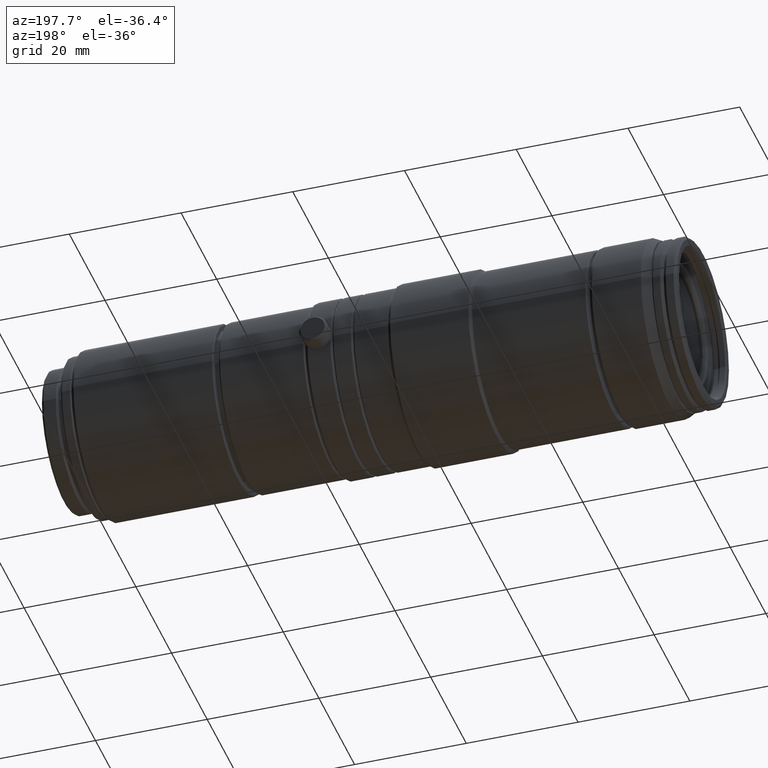
[diagram: clean part render]
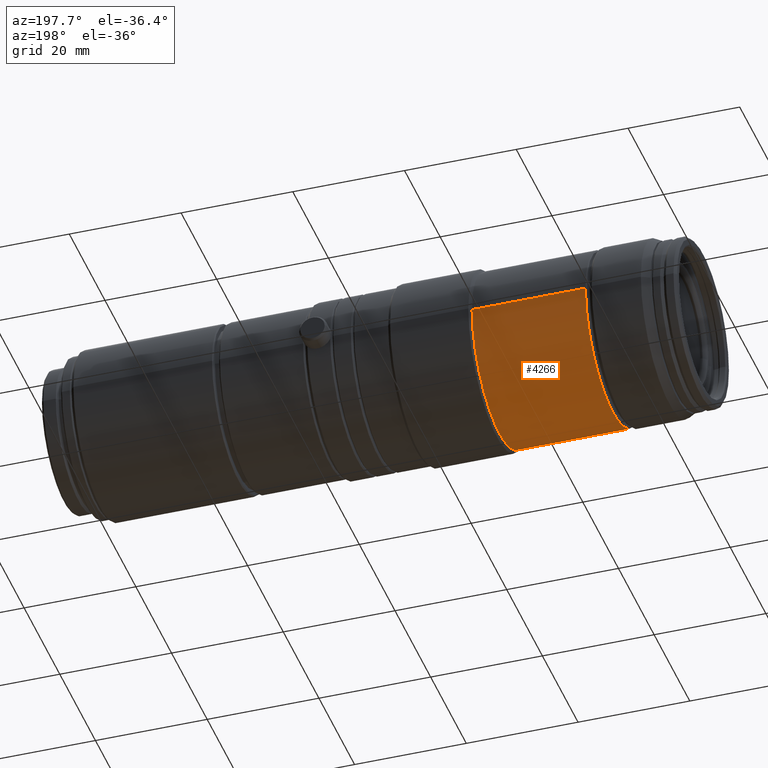
[diagram: same view with one face highlighted and labeled with its STEP entity id]
A machine part, auxiliary view. The second image highlights one B-rep face of the part: STEP entity #4266.
In plain terms, the highlighted cylindrical surface (partial cylindrical patch) has radius 15.4998 mm, axis along (1, -0, -0).
Its self-contained STEP definition (entity closure, byte-faithful):
#293 = DIRECTION ( 'NONE',  ( 1.000000000000000000, -5.556191259460425289E-17, -0.0000000000000000000 ) ) ;
#304 = DIRECTION ( 'NONE',  ( 0.0000000000000000000, 1.000000000000000000, 0.0000000000000000000 ) ) ;
#315 = AXIS2_PLACEMENT_3D ( 'NONE', #4006, #3445, #304 ) ;
#706 = AXIS2_PLACEMENT_3D ( 'NONE', #3741, #293, #3782 ) ;
#733 = DIRECTION ( 'NONE',  ( 1.000000000000000000, -5.556191259460425289E-17, -0.0000000000000000000 ) ) ;
#851 = CARTESIAN_POINT ( 'NONE',  ( -8.612003947942950521E-16, -15.49983351145345978, 1.898182149711835836E-15 ) ) ;
#1407 = VERTEX_POINT ( 'NONE', #3824 ) ;
#1445 = EDGE_CURVE ( 'NONE', #1407, #3763, #1554, .T. ) ;
#1554 = LINE ( 'NONE', #851, #2726 ) ;
#1616 = DIRECTION ( 'NONE',  ( 1.000000000000000000, -5.556191259460425289E-17, -0.0000000000000000000 ) ) ;
#1638 = CYLINDRICAL_SURFACE ( 'NONE', #4247, 15.49983351145345978 ) ;
#1653 = CARTESIAN_POINT ( 'NONE',  ( -91.50000037005251841, -15.49983351145345623, 1.928798319690520411E-15 ) ) ;
#1706 = EDGE_CURVE ( 'NONE', #1407, #2496, #2074, .T. ) ;
#1822 = ORIENTED_EDGE ( 'NONE', *, *, #3076, .T. ) ;
#2049 = DIRECTION ( 'NONE',  ( 5.556191259460425289E-17, 1.000000000000000000, 0.0000000000000000000 ) ) ;
#2074 = CIRCLE ( 'NONE', #315, 15.49983351145345978 ) ;
#2214 = DIRECTION ( 'NONE',  ( 1.000000000000000000, -5.556191259460425289E-17, -0.0000000000000000000 ) ) ;
#2218 = EDGE_LOOP ( 'NONE', ( #3580, #4128, #1822, #2645 ) ) ;
#2277 = VERTEX_POINT ( 'NONE', #3558 ) ;
#2464 = EDGE_CURVE ( 'NONE', #3763, #2277, #3624, .T. ) ;
#2496 = VERTEX_POINT ( 'NONE', #4444 ) ;
#2645 = ORIENTED_EDGE ( 'NONE', *, *, #2464, .F. ) ;
#2726 = VECTOR ( 'NONE', #2214, 1000.000000000000000 ) ;
#3076 = EDGE_CURVE ( 'NONE', #2496, #2277, #3429, .T. ) ;
#3082 = CARTESIAN_POINT ( 'NONE',  ( 0.0000000000000000000, 0.0000000000000000000, 0.0000000000000000000 ) ) ;
#3110 = CARTESIAN_POINT ( 'NONE',  ( 8.612003947942950521E-16, 15.49983351145345978, 0.0000000000000000000 ) ) ;
#3162 = VECTOR ( 'NONE', #733, 1000.000000000000000 ) ;
#3429 = LINE ( 'NONE', #3110, #3162 ) ;
#3445 = DIRECTION ( 'NONE',  ( 1.000000000000000000, -5.556191259460425289E-17, -0.0000000000000000000 ) ) ;
#3558 = CARTESIAN_POINT ( 'NONE',  ( -91.50000037005251841, 15.49983351145346688, 0.0000000000000000000 ) ) ;
#3580 = ORIENTED_EDGE ( 'NONE', *, *, #1445, .F. ) ;
#3624 = CIRCLE ( 'NONE', #706, 15.49983351145346155 ) ;
#3741 = CARTESIAN_POINT ( 'NONE',  ( -91.50000037005251841, 5.083915022967114217E-15, 0.0000000000000000000 ) ) ;
#3763 = VERTEX_POINT ( 'NONE', #1653 ) ;
#3782 = DIRECTION ( 'NONE',  ( 0.0000000000000000000, 1.000000000000000000, 0.0000000000000000000 ) ) ;
#3824 = CARTESIAN_POINT ( 'NONE',  ( -111.8000003700525298, -15.49983351145345267, 1.898182149711835836E-15 ) ) ;
#4006 = CARTESIAN_POINT ( 'NONE',  ( -111.8000003700525298, 6.211821848637581694E-15, 0.0000000000000000000 ) ) ;
#4128 = ORIENTED_EDGE ( 'NONE', *, *, #1706, .T. ) ;
#4247 = AXIS2_PLACEMENT_3D ( 'NONE', #3082, #1616, #2049 ) ;
#4266 = ADVANCED_FACE ( 'NONE', ( #4388 ), #1638, .T. ) ;
#4388 = FACE_OUTER_BOUND ( 'NONE', #2218, .T. ) ;
#4444 = CARTESIAN_POINT ( 'NONE',  ( -111.8000003700525298, 15.49983351145346688, 0.0000000000000000000 ) ) ;